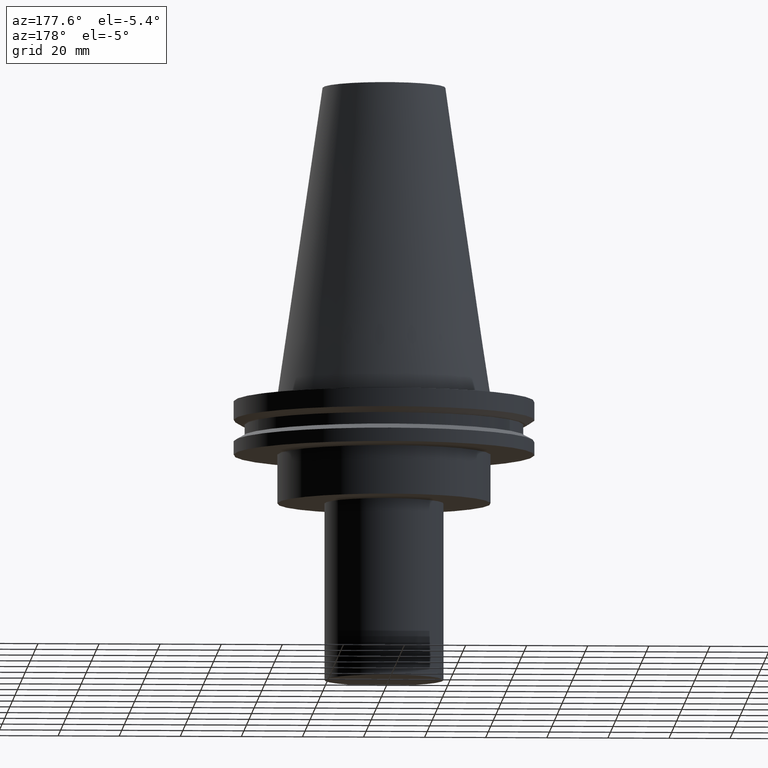
[diagram: clean part render]
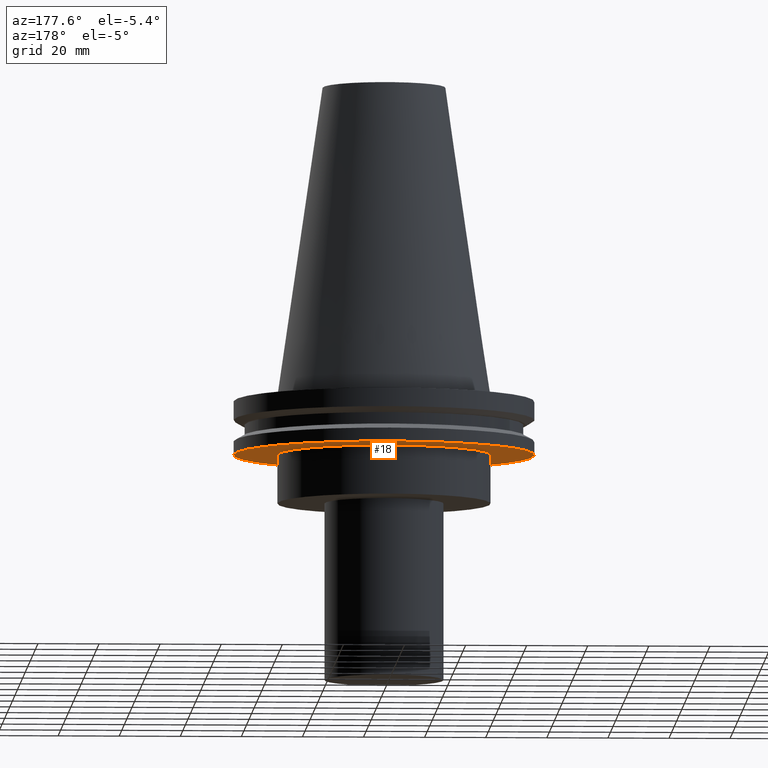
[diagram: same view with one face highlighted and labeled with its STEP entity id]
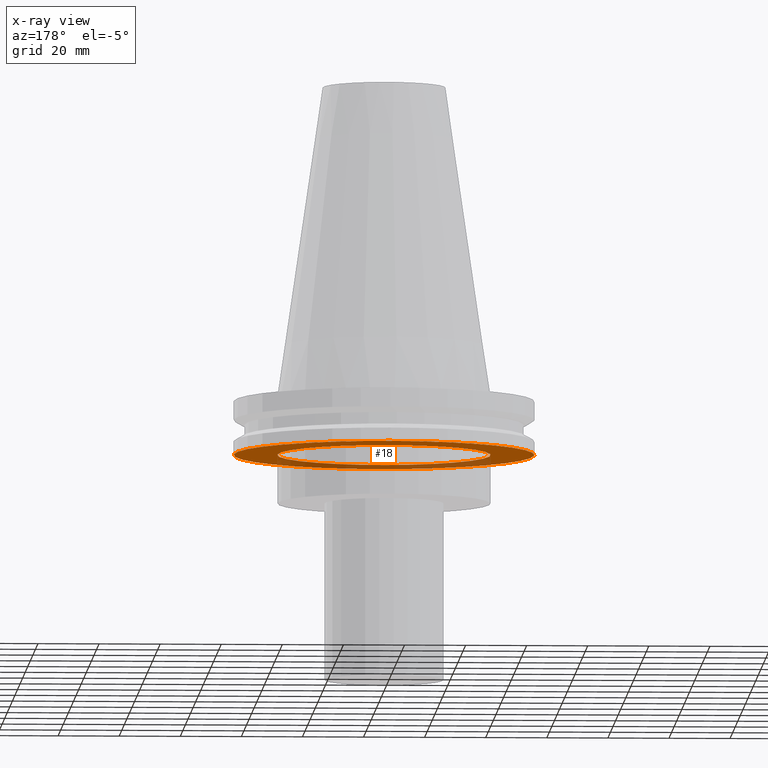
[diagram: x-ray of the same camera — body ghosted, the highlighted face saturated]
A machine part, auxiliary view. The second image highlights one B-rep face of the part: STEP entity #18.
The next image is the same camera in x-ray: the body ghosted, the highlighted face saturated — about 31% of this face is hidden behind the body in this view.
In plain terms, the highlighted planar face has unit normal (0, -0, 1).
Its self-contained STEP definition (entity closure, byte-faithful):
#1 = CIRCLE ( 'NONE', #322, 49.21499999999998920 ) ;
#3 = VERTEX_POINT ( 'NONE', #374 ) ;
#18 = ADVANCED_FACE ( 'NONE', ( #277, #59 ), #252, .F. ) ;
#32 = AXIS2_PLACEMENT_3D ( 'NONE', #188, #305, #336 ) ;
#51 = EDGE_CURVE ( 'NONE', #324, #324, #1, .T. ) ;
#59 = FACE_BOUND ( 'NONE', #331, .T. ) ;
#82 = DIRECTION ( 'NONE',  ( 1.000000000000000000, 0.000000000000000000, 0.000000000000000000 ) ) ;
#151 = CARTESIAN_POINT ( 'NONE',  ( 0.000000000000000000, 0.000000000000000000, -19.04999999999999716 ) ) ;
#154 = ORIENTED_EDGE ( 'NONE', *, *, #51, .F. ) ;
#175 = DIRECTION ( 'NONE',  ( -0.000000000000000000, -0.000000000000000000, 1.000000000000000000 ) ) ;
#188 = CARTESIAN_POINT ( 'NONE',  ( 0.000000000000000000, 49.21499999999998920, -19.04999999999999716 ) ) ;
#202 = ORIENTED_EDGE ( 'NONE', *, *, #361, .T. ) ;
#252 = PLANE ( 'NONE',  #32 ) ;
#272 = CARTESIAN_POINT ( 'NONE',  ( 49.21499999999998920, 0.000000000000000000, -19.04999999999999716 ) ) ;
#277 = FACE_OUTER_BOUND ( 'NONE', #329, .T. ) ;
#293 = CARTESIAN_POINT ( 'NONE',  ( 0.000000000000000000, 0.000000000000000000, -19.04999999999999716 ) ) ;
#305 = DIRECTION ( 'NONE',  ( 0.000000000000000000, -0.000000000000000000, 1.000000000000000000 ) ) ;
#306 = DIRECTION ( 'NONE',  ( 1.000000000000000000, 0.000000000000000000, 0.000000000000000000 ) ) ;
#307 = CIRCLE ( 'NONE', #345, 34.92499999999999716 ) ;
#322 = AXIS2_PLACEMENT_3D ( 'NONE', #151, #335, #306 ) ;
#324 = VERTEX_POINT ( 'NONE', #272 ) ;
#329 = EDGE_LOOP ( 'NONE', ( #154 ) ) ;
#331 = EDGE_LOOP ( 'NONE', ( #202 ) ) ;
#335 = DIRECTION ( 'NONE',  ( -0.000000000000000000, -0.000000000000000000, 1.000000000000000000 ) ) ;
#336 = DIRECTION ( 'NONE',  ( 1.000000000000000000, 0.000000000000000000, 0.000000000000000000 ) ) ;
#345 = AXIS2_PLACEMENT_3D ( 'NONE', #293, #175, #82 ) ;
#361 = EDGE_CURVE ( 'NONE', #3, #3, #307, .T. ) ;
#374 = CARTESIAN_POINT ( 'NONE',  ( 34.92499999999999716, 0.000000000000000000, -19.04999999999999716 ) ) ;